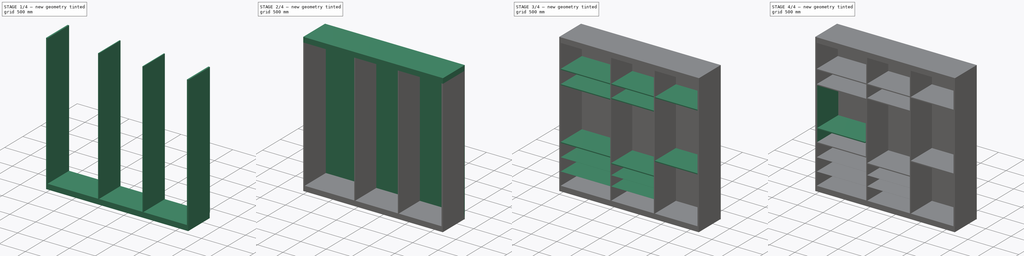
[diagram: build sequence overview — one tinted view per stage of 4, left to right]
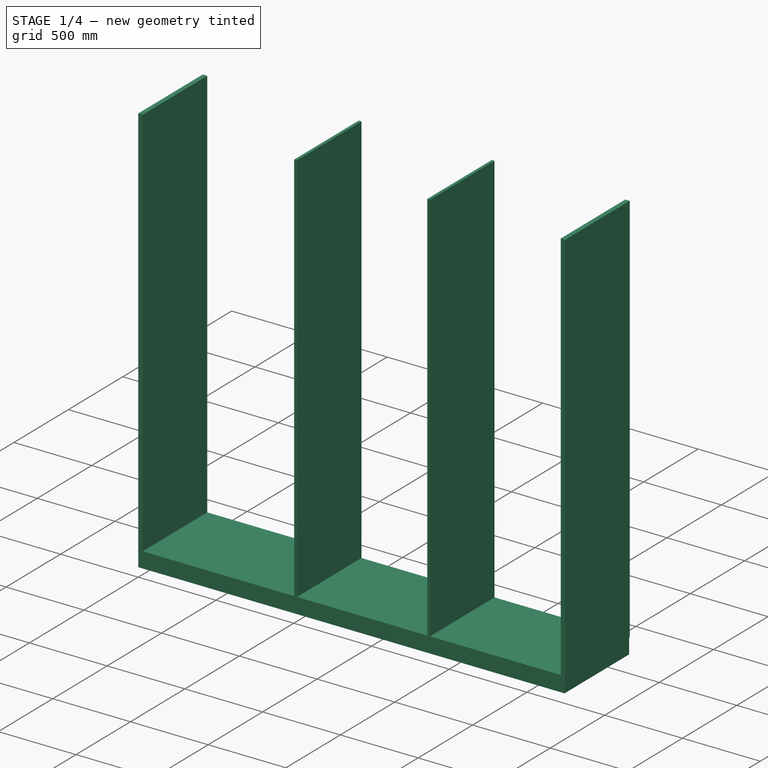
[diagram: stage 1 of 4 — iso view after this stage's code; geometry added in this stage tinted green]
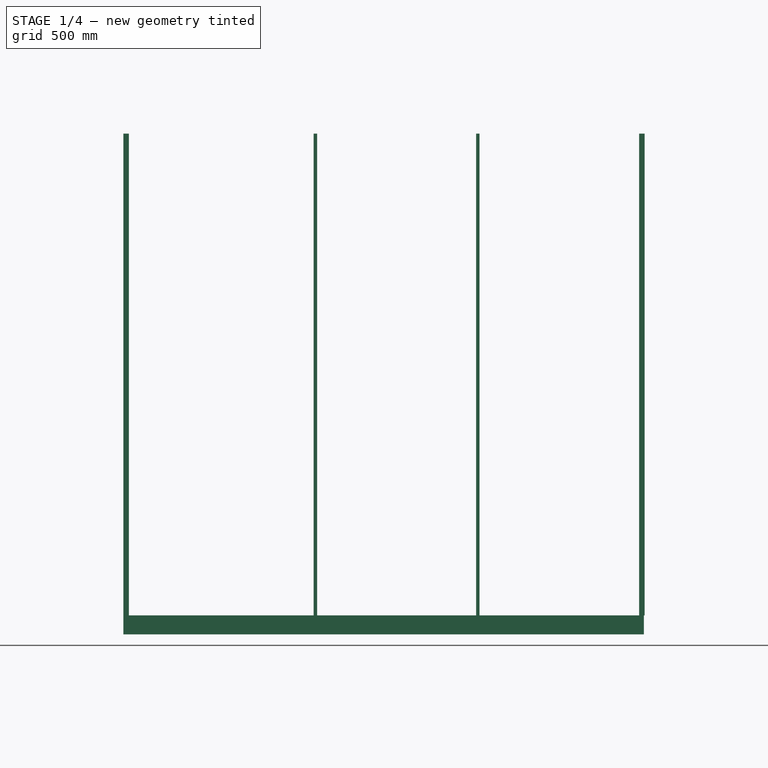
[diagram: stage 1 of 4 — front view after this stage's code; geometry added in this stage tinted green]
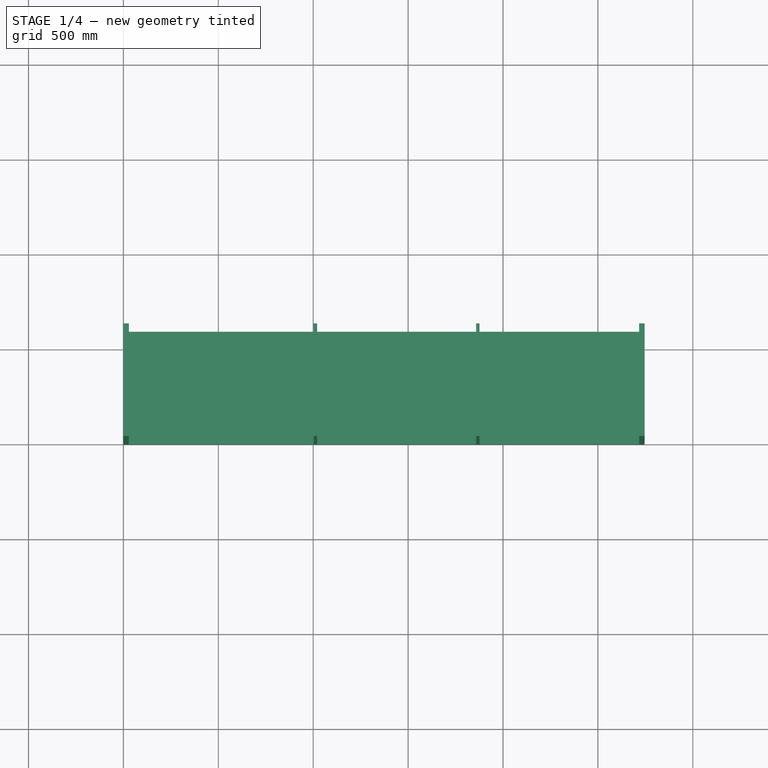
[diagram: stage 1 of 4 — top view after this stage's code; geometry added in this stage tinted green]
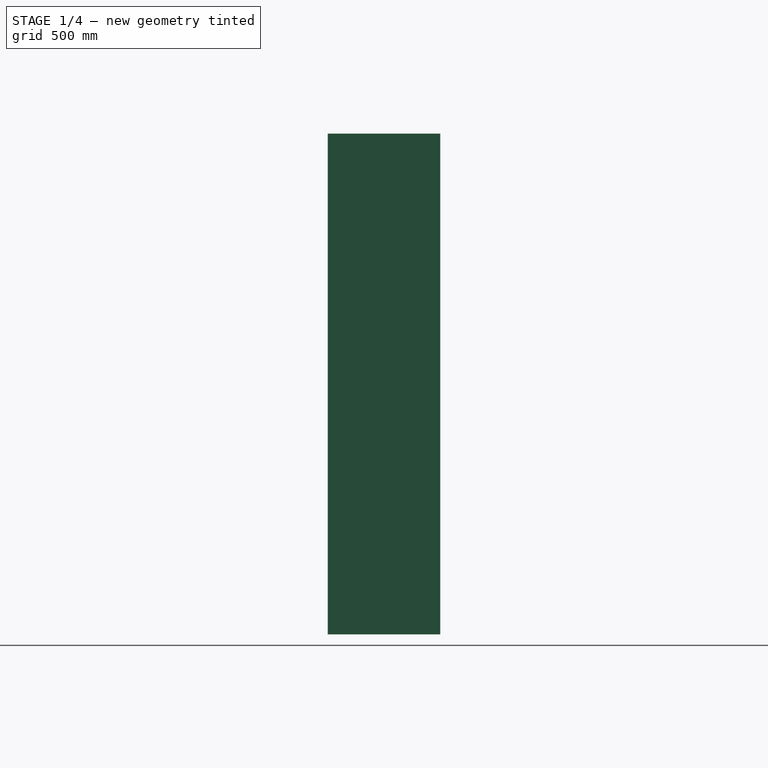
[diagram: stage 1 of 4 — right view after this stage's code; geometry added in this stage tinted green]
FCSTD DOCUMENT  (FreeCAD 0.19R24276 (Git))
Label: armarioQuartoDeCasal
License: All rights reserved
LicenseURL: http://en.wikipedia.org/wiki/All_rights_reserved
objects: Sketcher::SketchObject×9, PartDesign::Pad×9, PartDesign::Body×1
note: 28 computed .brp shape members not serialized (recipe doc carries the construction recipe); baked Part::Feature solids carry a one-line shape summary decoded from their .brp

FEATURE [Sketcher::SketchObject] Sketch
  FullyConstrained = true
  MapMode = 5
  Support = -> [XY_Plane]
  expr: Constraints[10] = 28.5 + 974 + 18 + 834 + 18 + 841 + 28.5
  sketch-geometry (4):
    g0: LineSegment StartX=0 StartY=0 StartZ=0 EndX=2742 EndY=0 EndZ=0
    g1: LineSegment StartX=2742 StartY=0 StartZ=0 EndX=2742 EndY=593 EndZ=0
    g2: LineSegment StartX=2742 StartY=593 StartZ=0 EndX=0 EndY=593 EndZ=0
    g3: LineSegment StartX=0 StartY=593 StartZ=0 EndX=0 EndY=0 EndZ=0
  constraints (11):
    c: Coincident(g0,g1)
    c: Coincident(g1,g2)
    c: Coincident(g2,g3)
    c: Coincident(g3,g0)
    c: Horizontal(g0)
    c: Horizontal(g2)
    c: Vertical(g1)
    c: Vertical(g3)
    c: Coincident(g0,g-1)
    c: DistanceY(g1,g1) = 593
    c: DistanceX(g0,g0) = 2742
FEATURE [PartDesign::Pad] Pad  label="base"
  Direction = (1,1,1)
  Length = 100
  Length2 = 100
  Profile = -> Sketch
  Type = 0
FEATURE [Sketcher::SketchObject] Sketch001
  ExternalGeometry = -> [Pad]
  FullyConstrained = true
  MapMode = 5
  Placement = pos=(0,0,100) rot=(0,0,1;0rad)
  Support = -> [Pad]
  sketch-geometry (16):
    g0: LineSegment StartX=0 StartY=593 StartZ=0 EndX=28.5 EndY=593 EndZ=0
    g1: LineSegment StartX=28.5 StartY=593 StartZ=0 EndX=28.5 EndY=0 EndZ=0
    g2: LineSegment StartX=28.5 StartY=0 StartZ=0 EndX=0 EndY=0 EndZ=0
    g3: LineSegment StartX=0 StartY=0 StartZ=0 EndX=0 EndY=593 EndZ=0
    g4: LineSegment StartX=1002.5 StartY=593 StartZ=0 EndX=1020.5 EndY=593 EndZ=0
    g5: LineSegment StartX=1020.5 StartY=593 StartZ=0 EndX=1020.5 EndY=0 EndZ=0
    g6: LineSegment StartX=1020.5 StartY=0 StartZ=0 EndX=1002.5 EndY=0 EndZ=0
    g7: LineSegment StartX=1002.5 StartY=0 StartZ=0 EndX=1002.5 EndY=593 EndZ=0
    g8: LineSegment StartX=1858.5 StartY=593 StartZ=0 EndX=1876.5 EndY=593 EndZ=0
    g9: LineSegment StartX=1876.5 StartY=593 StartZ=0 EndX=1876.5 EndY=0 EndZ=0
    g10: LineSegment StartX=1876.5 StartY=0 StartZ=0 EndX=1858.5 EndY=0 EndZ=0
    g11: LineSegment StartX=1858.5 StartY=0 StartZ=0 EndX=1858.5 EndY=593 EndZ=0
    g12: LineSegment StartX=2717.5 StartY=593 StartZ=0 EndX=2746 EndY=593 EndZ=0
    g13: LineSegment StartX=2746 StartY=593 StartZ=0 EndX=2746 EndY=0 EndZ=0
    g14: LineSegment StartX=2746 StartY=0 StartZ=0 EndX=2717.5 EndY=0 EndZ=0
    g15: LineSegment StartX=2717.5 StartY=0 StartZ=0 EndX=2717.5 EndY=593 EndZ=0
  constraints (48):
    c: Coincident(g0,g1)
    c: Coincident(g1,g2)
    c: Coincident(g2,g3)
    c: Coincident(g3,g0)
    c: Horizontal(g0)
    c: Horizontal(g2)
    c: Vertical(g1)
    c: Vertical(g3)
    c: Coincident(g2,g-1)
    c: DistanceY(g-3,g0) = 0
    c: DistanceX(g0,g0) = 28.5
    c: Coincident(g4,g5)
    c: Coincident(g5,g6)
    c: Coincident(g6,g7)
    c: Coincident(g7,g4)
    c: Horizontal(g4)
    c: Horizontal(g6)
    c: Vertical(g5)
    c: Vertical(g7)
    c: PointOnObject(g4,g-3)
    c: PointOnObject(g5,g-1)
    c: DistanceX(g4,g4) = 18
    c: DistanceX(g1,g6) = 974
    c: Coincident(g8,g9)
    c: Coincident(g9,g10)
    c: Coincident(g10,g11)
    c: Coincident(g11,g8)
    c: Horizontal(g8)
    c: Horizontal(g10)
    c: Vertical(g9)
    c: Vertical(g11)
    c: PointOnObject(g8,g-3)
    c: PointOnObject(g9,g-1)
    c: DistanceX(g8,g8) = 18
    c: DistanceX(g5,g10) = 838
    c: DistanceX(g-3,g-3) = 2742
    c: Coincident(g12,g13)
    c: Coincident(g13,g14)
    c: Coincident(g14,g15)
    c: Coincident(g15,g12)
    c: Horizontal(g12)
    c: Horizontal(g14)
    c: Vertical(g13)
    c: Vertical(g15)
    c: PointOnObject(g12,g-3)
    c: PointOnObject(g13,g-1)
    c: DistanceX(g12,g12) = 28.5
    c: DistanceX(g9,g14) = 841
FEATURE [PartDesign::Pad] Pad001  label="paredes"
  BaseFeature = -> Pad
  Direction = (1,1,1)
  Length = 2538
  Length2 = 100
  Profile = -> Sketch001
  Type = 0
  expr: Length = 920 + 18 + 1115 + 18 + 467
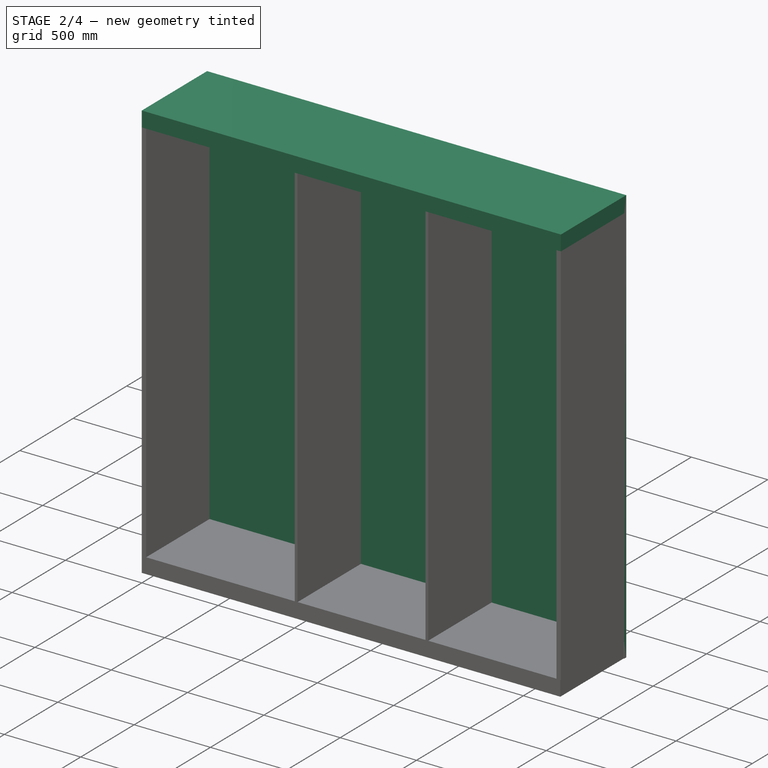
[diagram: stage 2 of 4 — iso view after this stage's code; geometry added in this stage tinted green]
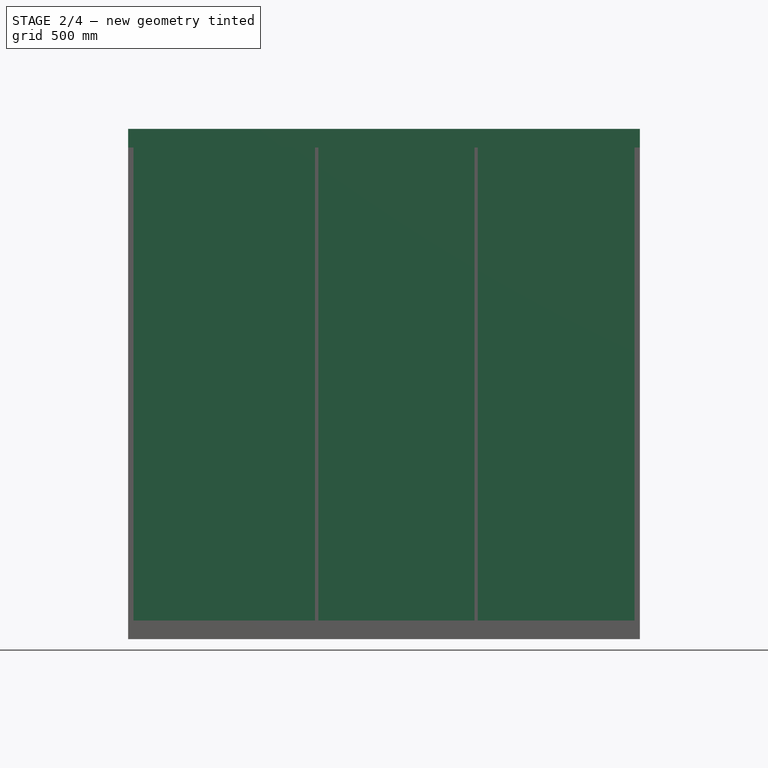
[diagram: stage 2 of 4 — front view after this stage's code; geometry added in this stage tinted green]
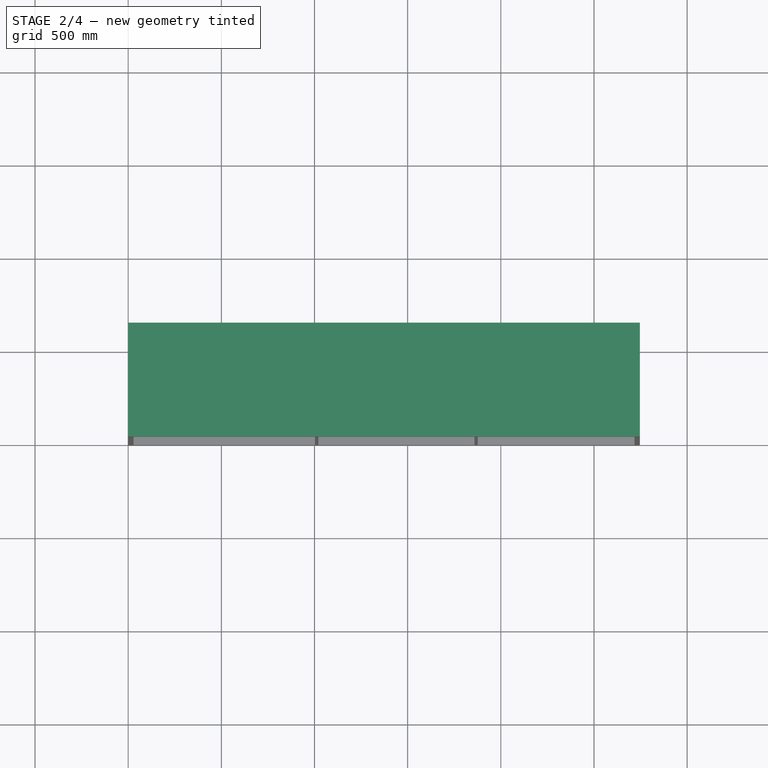
[diagram: stage 2 of 4 — top view after this stage's code; geometry added in this stage tinted green]
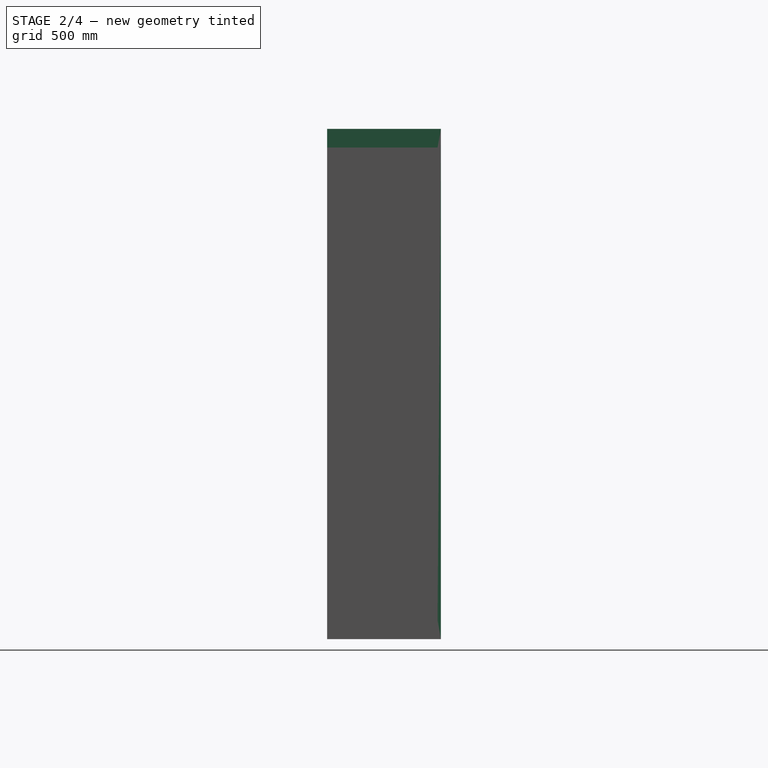
[diagram: stage 2 of 4 — right view after this stage's code; geometry added in this stage tinted green]
FEATURE [Sketcher::SketchObject] Sketch002
  ExternalGeometry = -> [Pad001]
  FullyConstrained = true
  MapMode = 5
  Placement = pos=(0,0,2638) rot=(0,0,1;0rad)
  Support = -> [Pad001]
  sketch-geometry (4):
    g0: LineSegment StartX=0 StartY=0 StartZ=0 EndX=2746 EndY=0 EndZ=0
    g1: LineSegment StartX=2746 StartY=0 StartZ=0 EndX=2746 EndY=593 EndZ=0
    g2: LineSegment StartX=2746 StartY=593 StartZ=0 EndX=0 EndY=593 EndZ=0
    g3: LineSegment StartX=0 StartY=593 StartZ=0 EndX=0 EndY=0 EndZ=0
  constraints (10):
    c: Coincident(g0,g1)
    c: Coincident(g1,g2)
    c: Coincident(g2,g3)
    c: Coincident(g3,g0)
    c: Horizontal(g0)
    c: Horizontal(g2)
    c: Vertical(g1)
    c: Vertical(g3)
    c: Coincident(g0,g-1)
    c: Coincident(g1,g-3)
FEATURE [PartDesign::Pad] Pad002  label="topo"
  BaseFeature = -> Pad001
  Direction = (1,1,1)
  Length = 100
  Length2 = 100
  Profile = -> Sketch002
  Type = 0
FEATURE [Sketcher::SketchObject] Sketch003
  ExternalGeometry = -> [Pad002]
  FullyConstrained = true
  MapMode = 5
  Placement = pos=(0,593,0) rot=(0,0.707107,0.707107;3.14159rad)
  Support = -> [Pad002]
  sketch-geometry (4):
    g0: LineSegment StartX=0 StartY=0 StartZ=0 EndX=-2746 EndY=0 EndZ=0
    g1: LineSegment StartX=-2746 StartY=0 StartZ=0 EndX=-2746 EndY=2738 EndZ=0
    g2: LineSegment StartX=-2746 StartY=2738 StartZ=0 EndX=0 EndY=2738 EndZ=0
    g3: LineSegment StartX=0 StartY=2738 StartZ=0 EndX=0 EndY=0 EndZ=0
  constraints (10):
    c: Coincident(g0,g1)
    c: Coincident(g1,g2)
    c: Coincident(g2,g3)
    c: Coincident(g3,g0)
    c: Horizontal(g0)
    c: Horizontal(g2)
    c: Vertical(g1)
    c: Vertical(g3)
    c: Coincident(g0,g-1)
    c: Coincident(g1,g-3)
FEATURE [PartDesign::Pad] Pad003
  BaseFeature = -> Pad002
  Direction = (1,1,1)
  Length = 18
  Length2 = 100
  Profile = -> Sketch003
  Type = 0
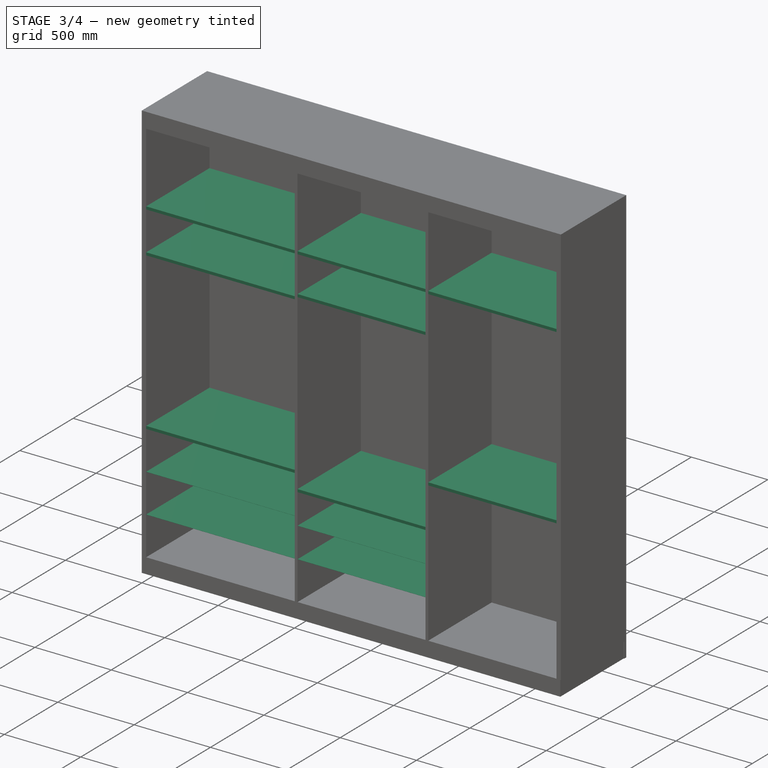
[diagram: stage 3 of 4 — iso view after this stage's code; geometry added in this stage tinted green]
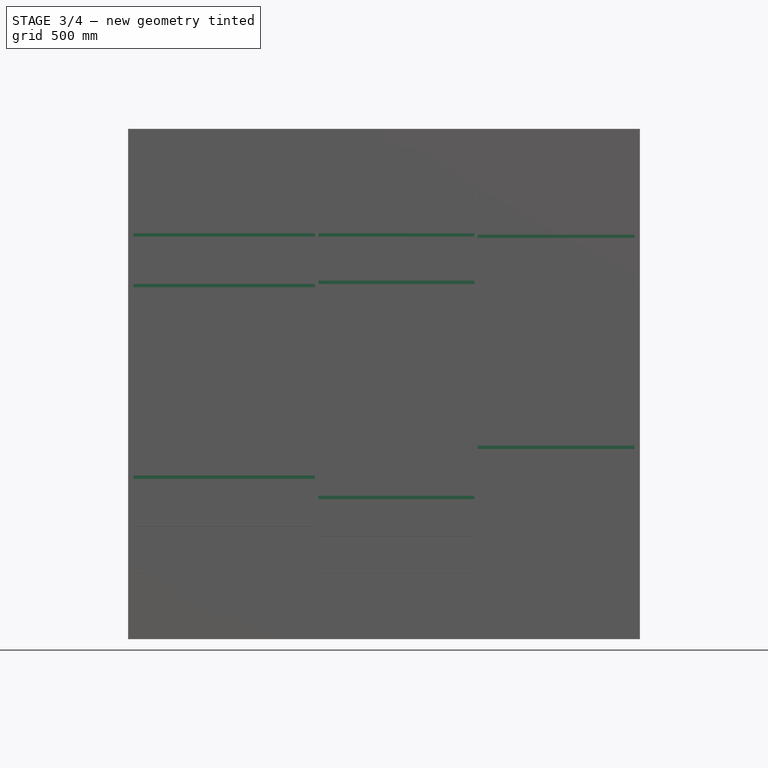
[diagram: stage 3 of 4 — front view after this stage's code; geometry added in this stage tinted green]
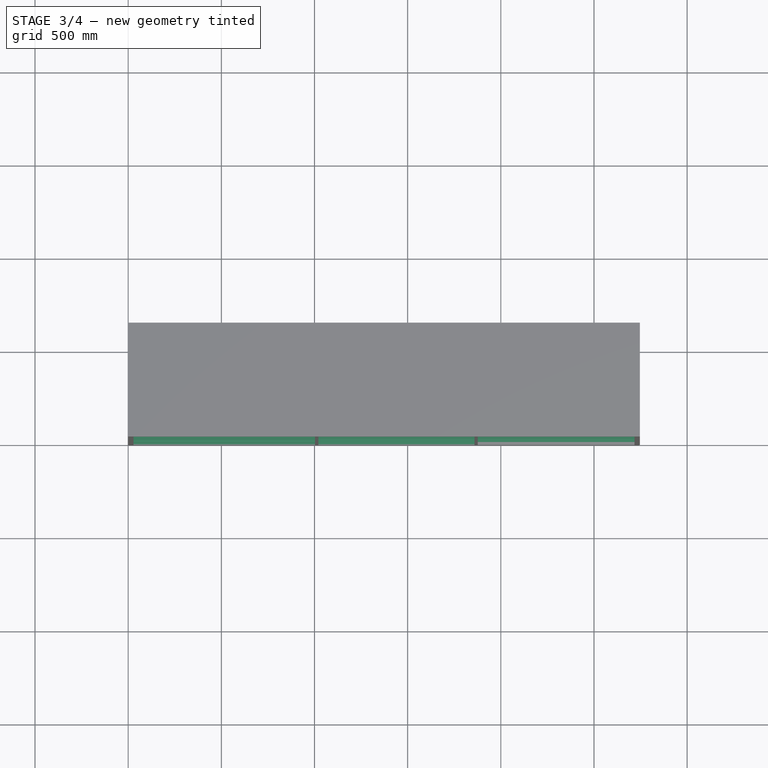
[diagram: stage 3 of 4 — top view after this stage's code; geometry added in this stage tinted green]
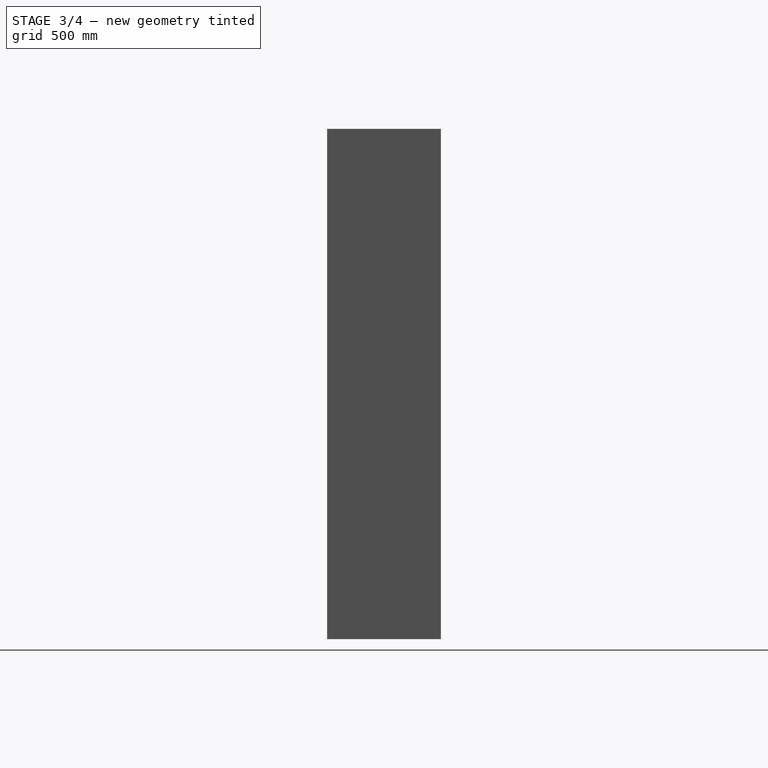
[diagram: stage 3 of 4 — right view after this stage's code; geometry added in this stage tinted green]
FEATURE [Sketcher::SketchObject] Sketch004
  ExternalGeometry = -> [Pad003]
  FullyConstrained = true
  MapMode = 5
  Placement = pos=(1876.5,0,0) rot=(0.57735,0.57735,0.57735;2.0944rad)
  Support = -> [Pad003]
  sketch-geometry (8):
    g0: LineSegment StartX=0 StartY=1038 StartZ=0 EndX=593 EndY=1038 EndZ=0
    g1: LineSegment StartX=593 StartY=1038 StartZ=0 EndX=593 EndY=1020 EndZ=0
    g2: LineSegment StartX=593 StartY=1020 StartZ=0 EndX=0 EndY=1020 EndZ=0
    g3: LineSegment StartX=0 StartY=1020 StartZ=0 EndX=0 EndY=1038 EndZ=0
    g4: LineSegment StartX=0 StartY=2171 StartZ=0 EndX=593 EndY=2171 EndZ=0
    g5: LineSegment StartX=593 StartY=2171 StartZ=0 EndX=593 EndY=2153 EndZ=0
    g6: LineSegment StartX=593 StartY=2153 StartZ=0 EndX=0 EndY=2153 EndZ=0
    g7: LineSegment StartX=0 StartY=2153 StartZ=0 EndX=0 EndY=2171 EndZ=0
  constraints (24):
    c: Coincident(g0,g1)
    c: Coincident(g1,g2)
    c: Coincident(g2,g3)
    c: Coincident(g3,g0)
    c: Horizontal(g0)
    c: Horizontal(g2)
    c: Vertical(g1)
    c: Vertical(g3)
    c: DistanceX(g0,g-5) = 0
    c: DistanceX(g0,g-5) = 0
    c: DistanceY(g3,g3) = 18
    c: DistanceY(g-3,g2) = 920
    c: Coincident(g4,g5)
    c: Coincident(g5,g6)
    c: Coincident(g6,g7)
    c: Coincident(g7,g4)
    c: Horizontal(g4)
    c: Horizontal(g6)
    c: Vertical(g5)
    c: Vertical(g7)
    c: PointOnObject(g4,g-3)
    c: DistanceX(g4,g-5) = 0
    c: DistanceY(g7,g7) = 18
    c: DistanceY(g0,g6) = 1115
FEATURE [PartDesign::Pad] Pad004
  BaseFeature = -> Pad003
  Direction = (1,1,1)
  Length = 841
  Length2 = 100
  Profile = -> Sketch004
  Type = 0
FEATURE [Sketcher::SketchObject] Sketch005
  ExternalGeometry = -> [Pad004]
  FullyConstrained = true
  MapMode = 5
  Placement = pos=(1020.5,0,0) rot=(0.57735,0.57735,0.57735;2.0944rad)
  Support = -> [Pad004]
  expr: Constraints[59] = 593 / 3
  expr: Constraints[46] = 596 / 3
  sketch-geometry (20):
    g0: LineSegment StartX=0 StartY=2178 StartZ=0 EndX=593 EndY=2178 EndZ=0
    g1: LineSegment StartX=593 StartY=2178 StartZ=0 EndX=593 EndY=2160 EndZ=0
    g2: LineSegment StartX=593 StartY=2160 StartZ=0 EndX=0 EndY=2160 EndZ=0
    g3: LineSegment StartX=0 StartY=2160 StartZ=0 EndX=0 EndY=2178 EndZ=0
    g4: LineSegment StartX=0 StartY=1906 StartZ=0 EndX=593 EndY=1906 EndZ=0
    g5: LineSegment StartX=593 StartY=1906 StartZ=0 EndX=593 EndY=1924 EndZ=0
    g6: LineSegment StartX=593 StartY=1924 StartZ=0 EndX=0 EndY=1924 EndZ=0
    g7: LineSegment StartX=0 StartY=1924 StartZ=0 EndX=0 EndY=1906 EndZ=0
    g8: LineSegment StartX=0 StartY=751 StartZ=0 EndX=593 EndY=751 EndZ=0
    g9: LineSegment StartX=593 StartY=751 StartZ=0 EndX=593 EndY=769 EndZ=0
    g10: LineSegment StartX=593 StartY=769 StartZ=0 EndX=0 EndY=769 EndZ=0
    g11: LineSegment StartX=0 StartY=769 StartZ=0 EndX=0 EndY=751 EndZ=0
    g12: LineSegment StartX=0 StartY=552.333 StartZ=0 EndX=593 EndY=552.333 EndZ=0
    g13: LineSegment StartX=593 StartY=552.333 StartZ=0 EndX=593 EndY=551.333 EndZ=0
    g14: LineSegment StartX=593 StartY=551.333 StartZ=0 EndX=0 EndY=551.333 EndZ=0
    g15: LineSegment StartX=0 StartY=551.333 StartZ=0 EndX=0 EndY=552.333 EndZ=0
    g16: LineSegment StartX=0 StartY=353.667 StartZ=0 EndX=593 EndY=353.667 EndZ=0
    g17: LineSegment StartX=593 StartY=353.667 StartZ=0 EndX=593 EndY=352.667 EndZ=0
    g18: LineSegment StartX=593 StartY=352.667 StartZ=0 EndX=0 EndY=352.667 EndZ=0
    g19: LineSegment StartX=0 StartY=352.667 StartZ=0 EndX=0 EndY=353.667 EndZ=0
  constraints (60):
    c: Coincident(g0,g1)
    c: Coincident(g1,g2)
    c: Coincident(g2,g3)
    c: Coincident(g3,g0)
    c: Horizontal(g0)
    c: Horizontal(g2)
    c: Vertical(g1)
    c: Vertical(g3)
    c: PointOnObject(g0,g-2)
    c: DistanceX(g0,g-3) = 0
    c: DistanceY(g3,g3) = 18
    c: DistanceY(g0,g-3) = 460
    c: Coincident(g4,g5)
    c: Coincident(g5,g6)
    c: Coincident(g6,g7)
    c: Coincident(g7,g4)
    c: Horizontal(g4)
    c: Horizontal(g6)
    c: Vertical(g5)
    c: Vertical(g7)
    c: DistanceX(g4,g-3) = 0
    c: DistanceX(g-3,g4) = 0
    c: Equal(g3,g7)
    c: DistanceY(g4,g2) = 254
    c: Coincident(g8,g9)
    c: Coincident(g9,g10)
    c: Coincident(g10,g11)
    c: Coincident(g11,g8)
    c: Horizontal(g8)
    c: Horizontal(g10)
    c: Vertical(g9)
    c: Vertical(g11)
    c: DistanceX(g8,g-3) = 0
    c: DistanceX(g-3,g8) = 0
    c: Equal(g3,g11)
    c: DistanceY(g8,g6) = 1173
    c: Coincident(g12,g13)
    c: Coincident(g13,g14)
    c: Coincident(g14,g15)
    c: Coincident(g15,g12)
    c: Horizontal(g12)
    c: Horizontal(g14)
    c: Vertical(g13)
    c: Vertical(g15)
    c: DistanceX(g-3,g12) = 0
    c: DistanceX(g12,g-3) = 0
    c: DistanceY(g12,g8) = 198.667
    c: DistanceY(g15,g15) = 1
    c: Coincident(g16,g17)
    c: Coincident(g17,g18)
    c: Coincident(g18,g19)
    c: Coincident(g19,g16)
    c: Horizontal(g16)
    c: Horizontal(g18)
    c: Vertical(g17)
    c: Vertical(g19)
    c: DistanceX(g-3,g16) = 0
    c: DistanceX(g16,g-3) = 0
    c: DistanceY(g19,g19) = 1
    c: DistanceY(g16,g14) = 197.667
FEATURE [PartDesign::Pad] Pad005
  BaseFeature = -> Pad004
  Direction = (1,1,1)
  Length = 838
  Length2 = 100
  Profile = -> Sketch005
  Type = 0
FEATURE [Sketcher::SketchObject] Sketch006
  ExternalGeometry = -> [Pad005]
  FullyConstrained = true
  MapMode = 5
  Placement = pos=(28.5,0,0) rot=(0.57735,0.57735,0.57735;2.0944rad)
  Support = -> [Pad005]
  expr: Constraints[59] = 760 / 3
  expr: Constraints[58] = 760 / 3
  sketch-geometry (20):
    g0: LineSegment StartX=0 StartY=2178 StartZ=0 EndX=593 EndY=2178 EndZ=0
    g1: LineSegment StartX=593 StartY=2178 StartZ=0 EndX=593 EndY=2160 EndZ=0
    g2: LineSegment StartX=593 StartY=2160 StartZ=0 EndX=0 EndY=2160 EndZ=0
    g3: LineSegment StartX=0 StartY=2160 StartZ=0 EndX=0 EndY=2178 EndZ=0
    g4: LineSegment StartX=0 StartY=1906 StartZ=0 EndX=593 EndY=1906 EndZ=0
    g5: LineSegment StartX=593 StartY=1906 StartZ=0 EndX=593 EndY=1888 EndZ=0
    g6: LineSegment StartX=593 StartY=1888 StartZ=0 EndX=0 EndY=1888 EndZ=0
    g7: LineSegment StartX=0 StartY=1888 StartZ=0 EndX=0 EndY=1906 EndZ=0
    g8: LineSegment StartX=0 StartY=878 StartZ=0 EndX=593 EndY=878 EndZ=0
    g9: LineSegment StartX=593 StartY=878 StartZ=0 EndX=593 EndY=860 EndZ=0
    g10: LineSegment StartX=593 StartY=860 StartZ=0 EndX=0 EndY=860 EndZ=0
    g11: LineSegment StartX=0 StartY=860 StartZ=0 EndX=0 EndY=878 EndZ=0
    g12: LineSegment StartX=0 StartY=606.667 StartZ=0 EndX=593 EndY=606.667 EndZ=0
    g13: LineSegment StartX=593 StartY=606.667 StartZ=0 EndX=593 EndY=605.667 EndZ=0
    g14: LineSegment StartX=593 StartY=605.667 StartZ=0 EndX=0 EndY=605.667 EndZ=0
    g15: LineSegment StartX=0 StartY=605.667 StartZ=0 EndX=0 EndY=606.667 EndZ=0
    g16: LineSegment StartX=0 StartY=353.333 StartZ=0 EndX=593 EndY=353.333 EndZ=0
    g17: LineSegment StartX=593 StartY=353.333 StartZ=0 EndX=593 EndY=352.333 EndZ=0
    g18: LineSegment StartX=593 StartY=352.333 StartZ=0 EndX=0 EndY=352.333 EndZ=0
    g19: LineSegment StartX=0 StartY=352.333 StartZ=0 EndX=0 EndY=353.333 EndZ=0
  constraints (60):
    c: Coincident(g0,g1)
    c: Coincident(g1,g2)
    c: Coincident(g2,g3)
    c: Coincident(g3,g0)
    c: Horizontal(g0)
    c: Horizontal(g2)
    c: Vertical(g1)
    c: Vertical(g3)
    c: Coincident(g4,g5)
    c: Coincident(g5,g6)
    c: Coincident(g6,g7)
    c: Coincident(g7,g4)
    c: Horizontal(g4)
    c: Horizontal(g6)
    c: Vertical(g5)
    c: Vertical(g7)
    c: DistanceX(g-3,g0) = 0
    c: DistanceX(g-3,g4) = 0
    c: DistanceX(g4,g-3) = 0
    c: DistanceX(g0,g-3) = 0
    c: DistanceY(g3,g3) = 18
    c: DistanceY(g7,g7) = 18
    c: DistanceY(g0,g-3) = 460
    c: DistanceY(g4,g2) = 254
    c: Coincident(g8,g9)
    c: Coincident(g9,g10)
    c: Coincident(g10,g11)
    c: Coincident(g11,g8)
    c: Horizontal(g8)
    c: Horizontal(g10)
    c: Vertical(g9)
    c: Vertical(g11)
    c: DistanceX(g-3,g8) = 0
    c: DistanceX(g8,g-3) = 0
    c: DistanceY(g11,g11) = 18
    c: DistanceY(g-4,g10) = 760
    c: Coincident(g12,g13)
    c: Coincident(g13,g14)
    c: Coincident(g14,g15)
    c: Coincident(g15,g12)
    c: Horizontal(g12)
    c: Horizontal(g14)
    c: Vertical(g13)
    c: Vertical(g15)
    c: Coincident(g16,g17)
    c: Coincident(g17,g18)
    c: Coincident(g18,g19)
    c: Coincident(g19,g16)
    c: Horizontal(g16)
    c: Horizontal(g18)
    c: Vertical(g17)
    c: Vertical(g19)
    c: DistanceX(g12,g-4) = 0
    c: DistanceX(g17,g-4) = 0
    c: DistanceX(g-4,g18) = 0
    c: DistanceX(g-4,g14) = 0
    c: DistanceY(g15,g15) = 1
    c: DistanceY(g19,g19) = 1
    c: DistanceY(g12,g10) = 253.333
    c: DistanceY(g16,g12) = 253.333
FEATURE [PartDesign::Pad] Pad006
  BaseFeature = -> Pad005
  Direction = (1,1,1)
  Length = 974
  Length2 = 100
  Profile = -> Sketch006
  Type = 0
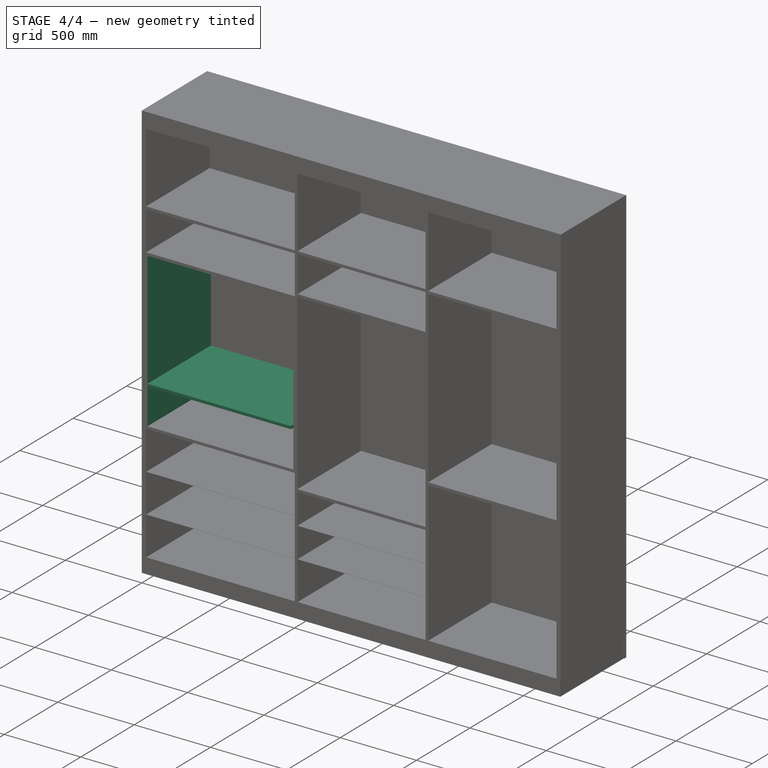
[diagram: stage 4 of 4 — iso view after this stage's code; geometry added in this stage tinted green]
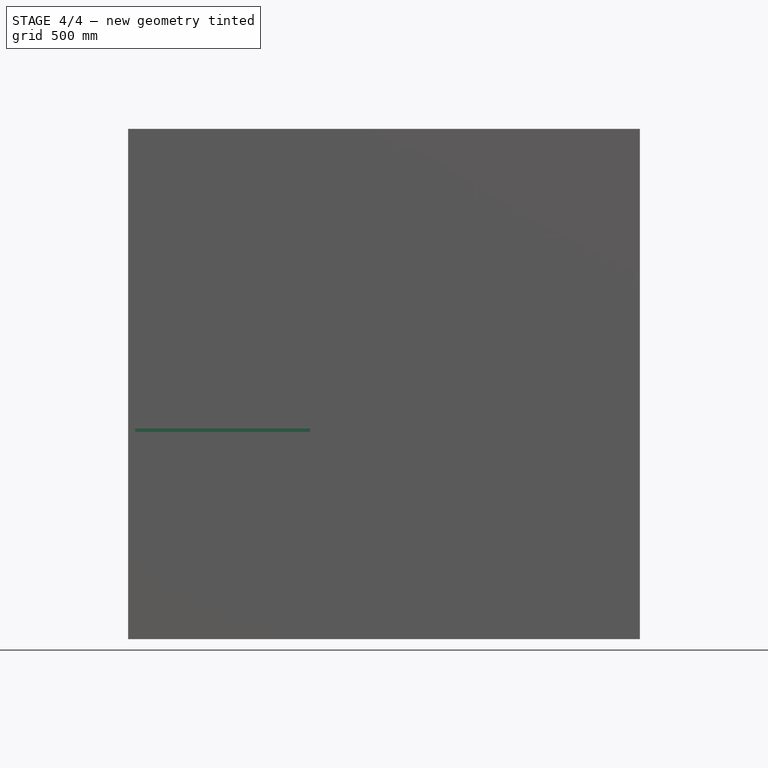
[diagram: stage 4 of 4 — front view after this stage's code; geometry added in this stage tinted green]
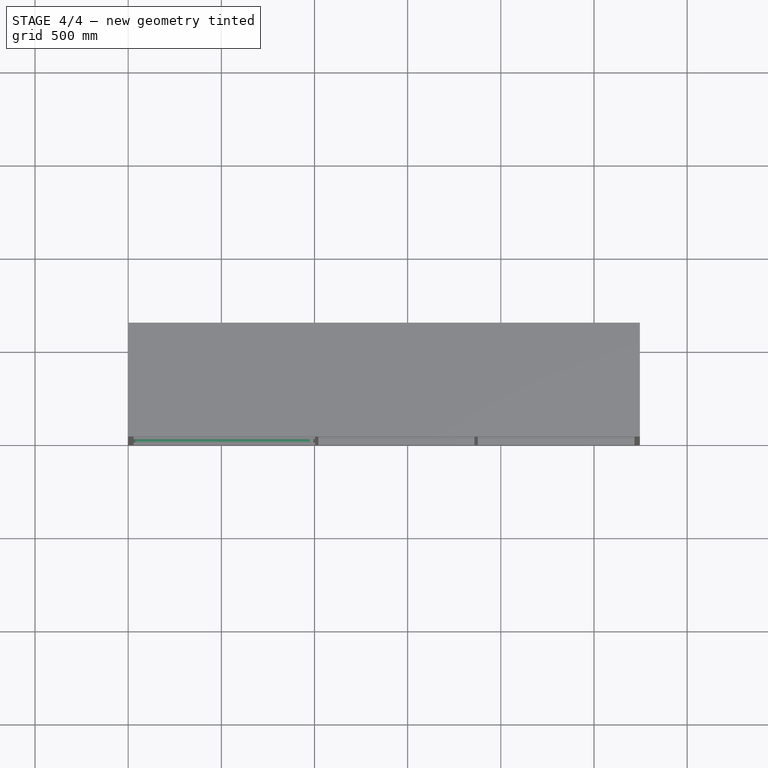
[diagram: stage 4 of 4 — top view after this stage's code; geometry added in this stage tinted green]
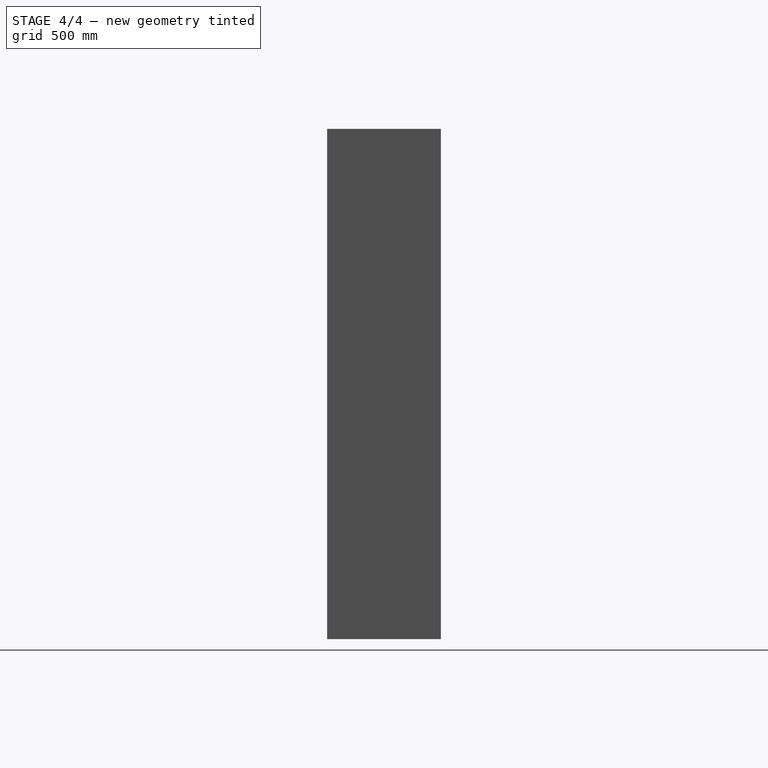
[diagram: stage 4 of 4 — right view after this stage's code; geometry added in this stage tinted green]
FEATURE [Sketcher::SketchObject] Sketch007
  ExternalGeometry = -> [Pad006]
  FullyConstrained = true
  MapMode = 5
  Placement = pos=(0,0,878) rot=(0,0,1;0rad)
  Support = -> [Pad006]
  expr: Constraints[21] = 27.5 - 18
  expr: Constraints[20] = 37 - 28.5
  sketch-geometry (8):
    g0: LineSegment StartX=28.5 StartY=593 StartZ=0 EndX=37 EndY=593 EndZ=0
    g1: LineSegment StartX=37 StartY=593 StartZ=0 EndX=37 EndY=0 EndZ=0
    g2: LineSegment StartX=37 StartY=0 StartZ=0 EndX=28.5 EndY=0 EndZ=0
    g3: LineSegment StartX=28.5 StartY=0 StartZ=0 EndX=28.5 EndY=593 EndZ=0
    g4: LineSegment StartX=1002.5 StartY=593 StartZ=0 EndX=993 EndY=593 EndZ=0
    g5: LineSegment StartX=993 StartY=593 StartZ=0 EndX=993 EndY=0 EndZ=0
    g6: LineSegment StartX=993 StartY=0 StartZ=0 EndX=1002.5 EndY=0 EndZ=0
    g7: LineSegment StartX=1002.5 StartY=0 StartZ=0 EndX=1002.5 EndY=593 EndZ=0
  constraints (22):
    c: Coincident(g0,g1)
    c: Coincident(g1,g2)
    c: Coincident(g2,g3)
    c: Coincident(g3,g0)
    c: Horizontal(g0)
    c: Horizontal(g2)
    c: Vertical(g1)
    c: Vertical(g3)
    c: Coincident(g0,g-4)
    c: PointOnObject(g1,g-1)
    c: Coincident(g4,g5)
    c: Coincident(g5,g6)
    c: Coincident(g6,g7)
    c: Coincident(g7,g4)
    c: Horizontal(g4)
    c: Horizontal(g6)
    c: Vertical(g5)
    c: Vertical(g7)
    c: Coincident(g4,g-3)
    c: PointOnObject(g5,g-1)
    c: DistanceX(g0,g0) = 8.5
    c: DistanceX(g6,g6) = 9.5
FEATURE [PartDesign::Pad] Pad007
  BaseFeature = -> Pad006
  Direction = (1,1,1)
  Length = 1024
  Length2 = 100
  Profile = -> Sketch007
  Type = 0
  expr: Length = 252 + 18 + 754
FEATURE [Sketcher::SketchObject] Sketch008
  ExternalGeometry = -> [Pad007]
  FullyConstrained = true
  MapMode = 5
  Placement = pos=(37,0,0) rot=(0.57735,0.57735,0.57735;2.0944rad)
  Support = -> [Pad007]
  sketch-geometry (4):
    g0: LineSegment StartX=0 StartY=1112 StartZ=0 EndX=593 EndY=1112 EndZ=0
    g1: LineSegment StartX=593 StartY=1112 StartZ=0 EndX=593 EndY=1130 EndZ=0
    g2: LineSegment StartX=593 StartY=1130 StartZ=0 EndX=0 EndY=1130 EndZ=0
    g3: LineSegment StartX=0 StartY=1130 StartZ=0 EndX=0 EndY=1112 EndZ=0
  constraints (13):
    c: Coincident(g0,g1)
    c: Coincident(g1,g2)
    c: Coincident(g2,g3)
    c: Coincident(g3,g0)
    c: Horizontal(g0)
    c: Horizontal(g2)
    c: Vertical(g1)
    c: Vertical(g3)
    c: DistanceX(g-3,g2) = 0
    c: DistanceX(g0,g0) = 593
    c: DistanceY(g-3,g-3) = 1010
    c: DistanceY(g-5,g2) = 252
    c: DistanceY(g3,g3) = 18
FEATURE [PartDesign::Pad] Pad008
  BaseFeature = -> Pad007
  Direction = (1,1,1)
  Length = 939.8
  Length2 = 100
  Profile = -> Sketch008
  Type = 0
  expr: Length = 974 - (37 - 28.5) - (27.5 - 1.8)
FEATURE [PartDesign::Body] Body
  Group = -> [Sketch,Pad,Sketch001,Pad001,Sketch002,Pad002,Sketch003,Pad003,Sketch004,Pad004,Sketch005,Pad005,Sketch006,Pad006,Sketch007,Pad007,Sketch008,Pad008]
  Origin = -> Origin
  Tip = -> Pad008
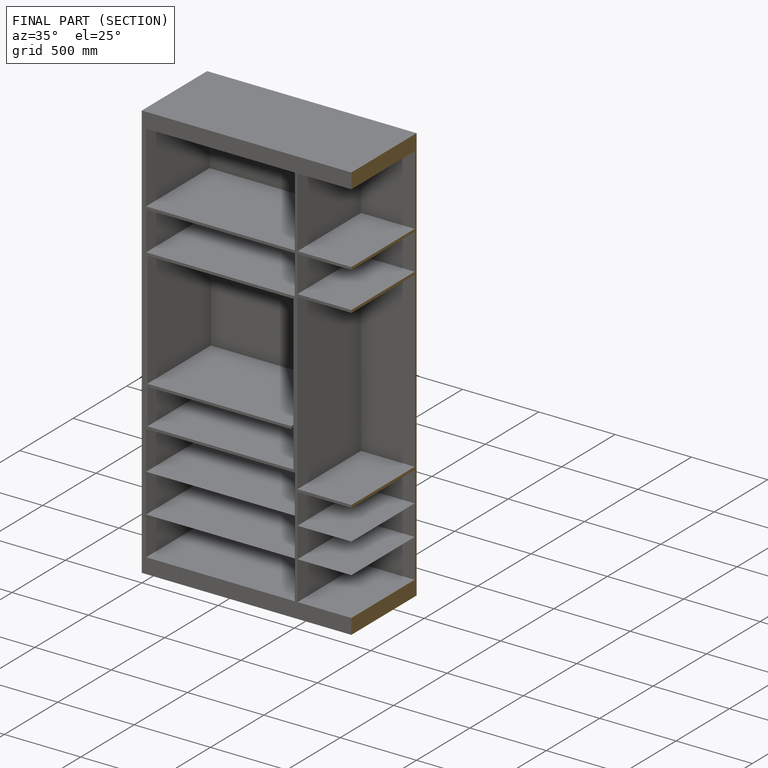
[diagram: finished part — half-section view (interior)]
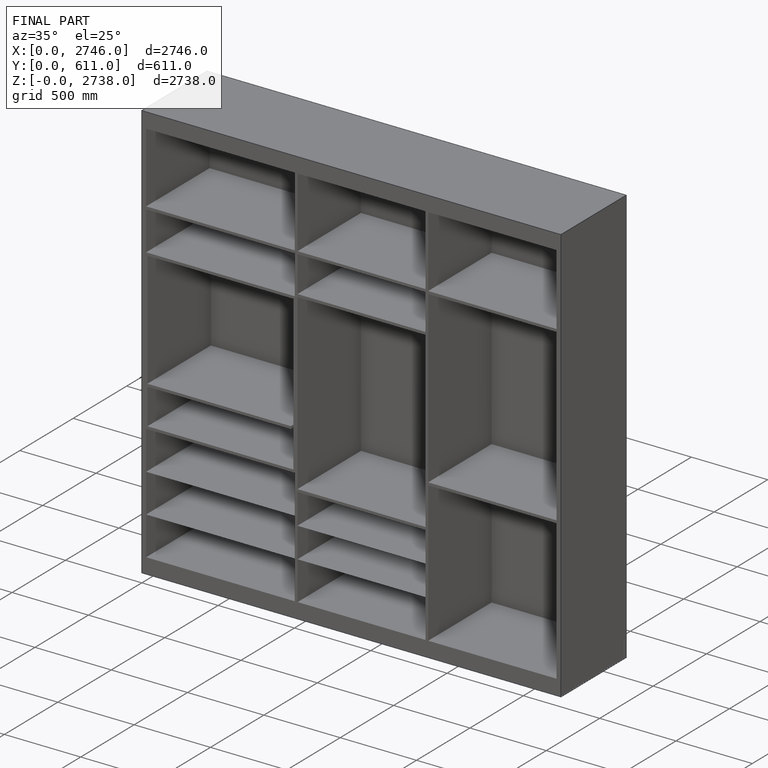
[diagram: finished part — iso view with bounding-box wireframe]
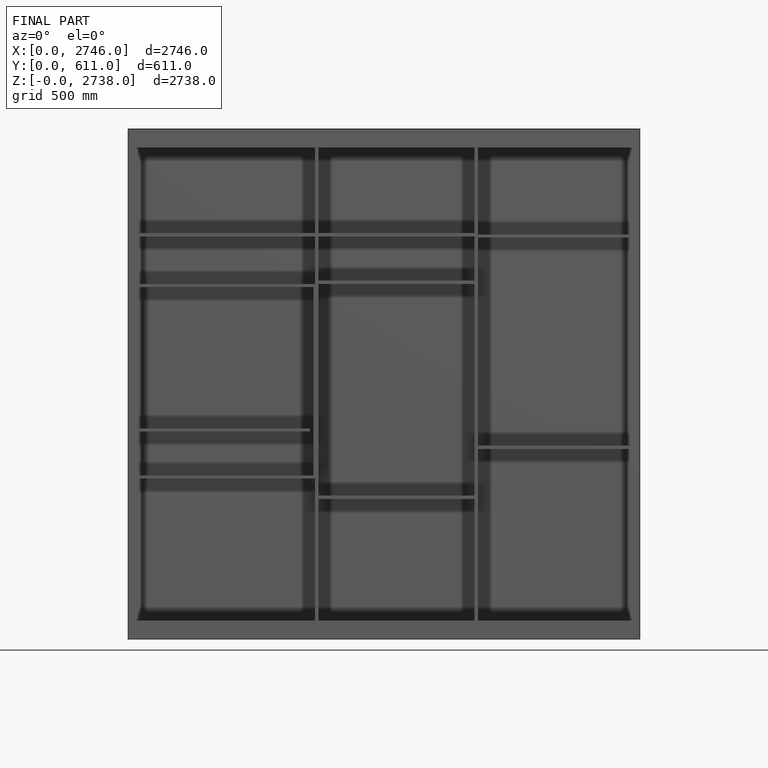
[diagram: finished part — front view with bounding-box wireframe]
